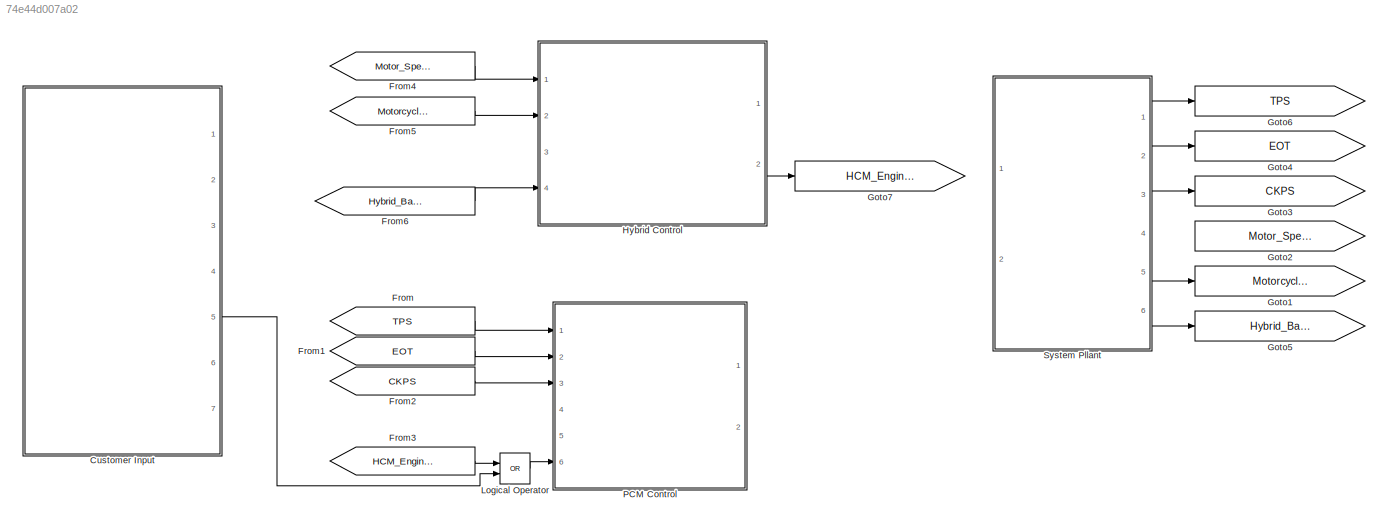
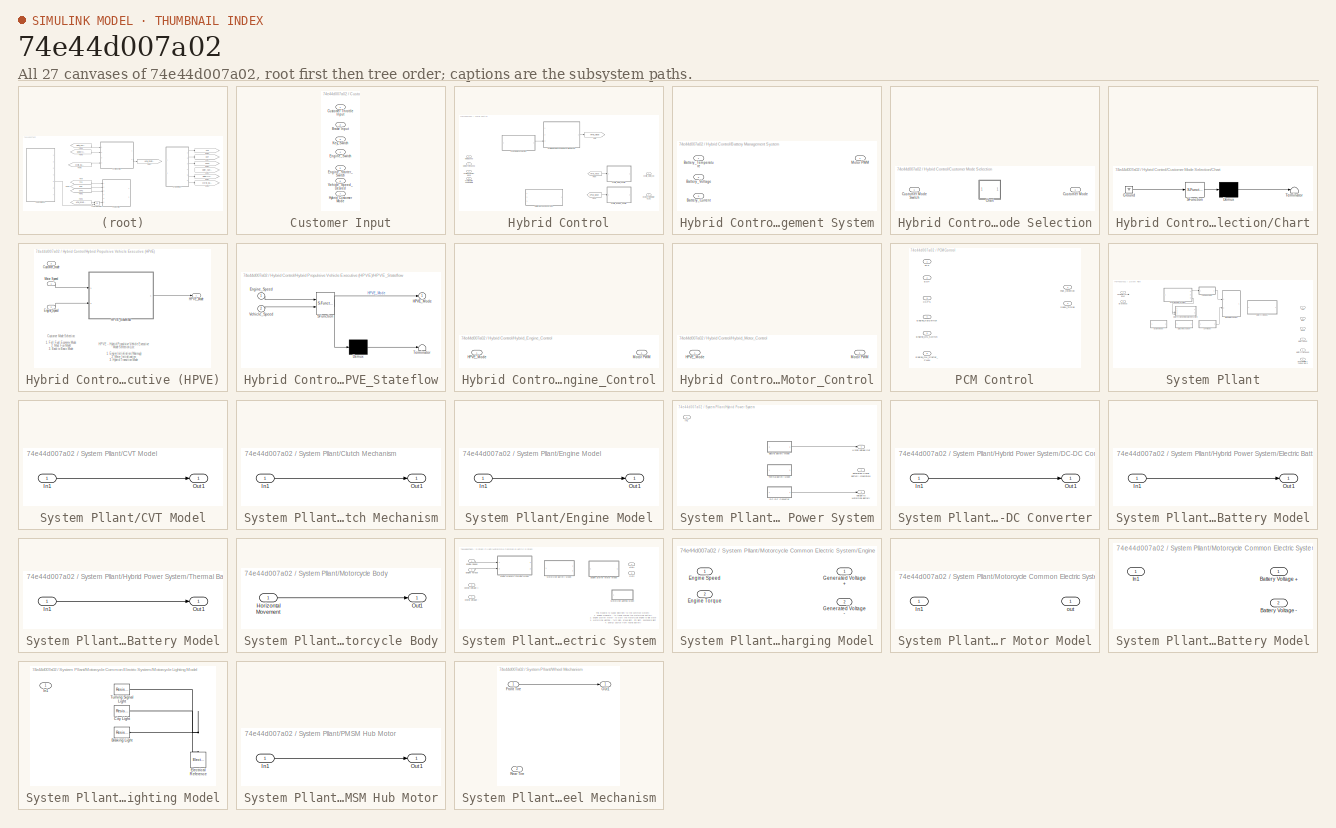
[diagram: thumbnail index - all 27 canvases of the model, root first then tree order]
MODEL slx_74e44d007a02
KIND model
BLOCK [SubSystem] Customer Input
  FunctionWithSeparateData = off
  MaskHideContents = off
  MinAlgLoopOccurrences = off
  Opaque = off
  Ports = [0, 7]
  PropExecContextOutsideSubsystem = off
  RTWSystemCode = Auto
  RequestExecContextInheritance = off
BLOCK [Outport] Customer Input/Brake Input
  IconDisplay = Port number
  Port = 2
BLOCK [Outport] Customer Input/Customer Throttle Input 
  IconDisplay = Port number
BLOCK [Outport] Customer Input/Engine_Starter_Switch
  IconDisplay = Port number
  Port = 5
BLOCK [Outport] Customer Input/Engine_Switch
  IconDisplay = Port number
  Port = 4
BLOCK [Outport] Customer Input/Hybrid Customer Mode
  IconDisplay = Port number
  Port = 7
BLOCK [Outport] Customer Input/Key_Switch
  IconDisplay = Port number
  Port = 3
BLOCK [Outport] Customer Input/Vehicle_Speed_Desired
  IconDisplay = Port number
  Port = 6
BLOCK [From] From
  GotoTag = TPS
BLOCK [From] From1
  GotoTag = EOT
BLOCK [From] From2
  GotoTag = CKPS
BLOCK [From] From3
  GotoTag = HCM_Engine_Motor_DC
BLOCK [From] From4
  GotoTag = Motor_Speed
BLOCK [From] From5
  GotoTag = Motorcycle_Speed
BLOCK [From] From6
  GotoTag = Hybrid_Battery_Temperature
BLOCK [Goto] Goto1
  GotoTag = Motorcycle_Speed
BLOCK [Goto] Goto2
  GotoTag = Motor_Speed
BLOCK [Goto] Goto3
  GotoTag = CKPS
BLOCK [Goto] Goto4
  GotoTag = EOT
BLOCK [Goto] Goto5
  GotoTag = Hybrid_Battery_Temperature
BLOCK [Goto] Goto6
  GotoTag = TPS
BLOCK [Goto] Goto7
  GotoTag = HCM_Engine_Motor_DC
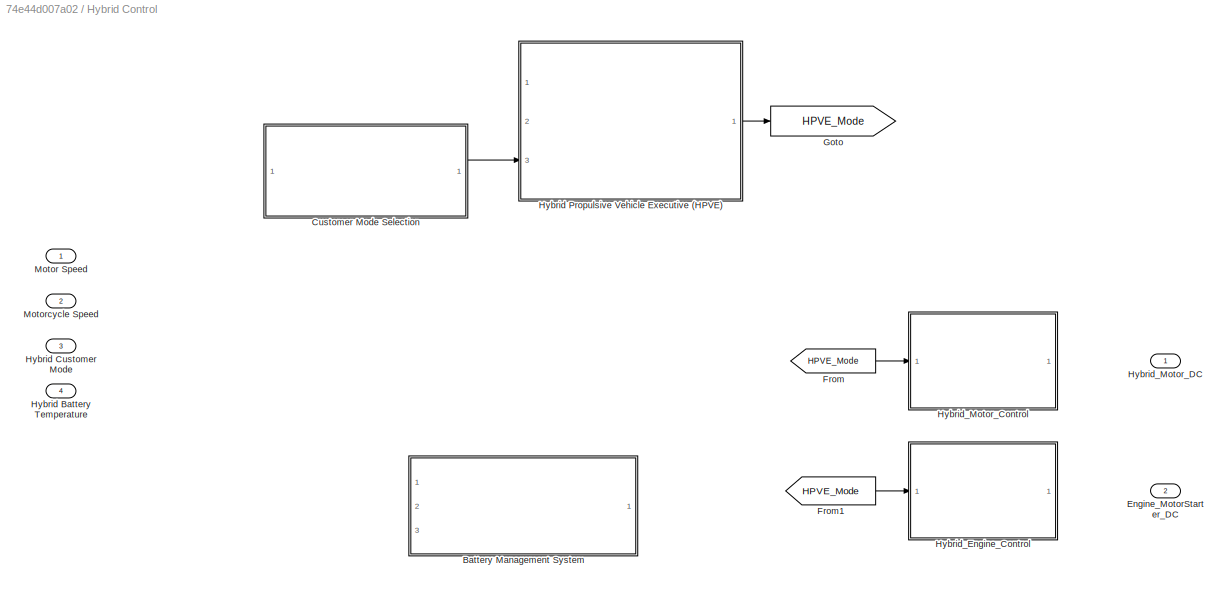
BLOCK [SubSystem] Hybrid Control
  FunctionWithSeparateData = off
  MaskHideContents = off
  MinAlgLoopOccurrences = off
  Opaque = off
  Ports = [4, 2]
  PropExecContextOutsideSubsystem = off
  RTWSystemCode = Auto
  RequestExecContextInheritance = off
BLOCK [SubSystem] Hybrid Control/Battery Management System
  FunctionWithSeparateData = off
  MaskHideContents = off
  MinAlgLoopOccurrences = off
  Opaque = off
  Ports = [3, 1]
  PropExecContextOutsideSubsystem = off
  RTWSystemCode = Auto
  RequestExecContextInheritance = off
BLOCK [Inport] Hybrid Control/Battery Management System/Battery_Current
  IconDisplay = Port number
  Port = 3
BLOCK [Inport] Hybrid Control/Battery Management System/Battery_Temperature
  IconDisplay = Port number
BLOCK [Inport] Hybrid Control/Battery Management System/Battery_Voltage
  IconDisplay = Port number
  Port = 2
BLOCK [Outport] Hybrid Control/Battery Management System/Motor PWM
  IconDisplay = Port number
BLOCK [SubSystem] Hybrid Control/Customer Mode Selection
  FunctionWithSeparateData = off
  MaskHideContents = off
  MinAlgLoopOccurrences = off
  Opaque = off
  Ports = [1, 1]
  PropExecContextOutsideSubsystem = off
  RTWSystemCode = Auto
  RequestExecContextInheritance = off
BLOCK [SubSystem] Hybrid Control/Customer Mode Selection/Chart
  ErrorFcn = Stateflow.Translate.translate
  FunctionWithSeparateData = off
  MaskHideContents = off
  MinAlgLoopOccurrences = off
  Opaque = off
  PermitHierarchicalResolution = ExplicitOnly
  Ports = []
  PropExecContextOutsideSubsystem = off
  RTWSystemCode = Auto
  RequestExecContextInheritance = off
  SFBlockType = Chart
  TreatAsAtomicUnit = on
BLOCK [Demux] Hybrid Control/Customer Mode Selection/Chart/ Demux 
  Outputs = 1
  Ports = [1, 1]
BLOCK [Ground] Hybrid Control/Customer Mode Selection/Chart/ Ground 
BLOCK [S-Function] Hybrid Control/Customer Mode Selection/Chart/ SFunction 
  EnableBusSupport = off
  FunctionName = sf_sfun
  PortCounts = [1 1]
  Ports = [1, 1]
  Tag = Stateflow S-Function HybridMotorcycle_HighLevelOverview 1
BLOCK [Terminator] Hybrid Control/Customer Mode Selection/Chart/ Terminator 
BLOCK [Outport] Hybrid Control/Customer Mode Selection/Customer Mode
  IconDisplay = Port number
BLOCK [Inport] Hybrid Control/Customer Mode Selection/Customer Mode Switch
  IconDisplay = Port number
BLOCK [Outport] Hybrid Control/Engine_MotorStarter_DC
  IconDisplay = Port number
  Port = 2
BLOCK [From] Hybrid Control/From
  GotoTag = HPVE_Mode
BLOCK [From] Hybrid Control/From1
  GotoTag = HPVE_Mode
BLOCK [Goto] Hybrid Control/Goto
  GotoTag = HPVE_Mode
BLOCK [Inport] Hybrid Control/Hybrid Battery Temperature
  IconDisplay = Port number
  Port = 4
BLOCK [Inport] Hybrid Control/Hybrid Customer Mode
  IconDisplay = Port number
  Port = 3
BLOCK [SubSystem] Hybrid Control/Hybrid Propulsive Vehicle Executive (HPVE)
  FunctionWithSeparateData = off
  MaskHideContents = off
  MinAlgLoopOccurrences = off
  Opaque = off
  Ports = [3, 1]
  PropExecContextOutsideSubsystem = off
  RTWSystemCode = Auto
  RequestExecContextInheritance = off
BLOCK [Inport] Hybrid Control/Hybrid Propulsive Vehicle Executive (HPVE)/Customer_mode 
  IconDisplay = Port number
  Port = 3
BLOCK [Inport] Hybrid Control/Hybrid Propulsive Vehicle Executive (HPVE)/Engine_Speed
  IconDisplay = Port number
  Port = 2
BLOCK [Outport] Hybrid Control/Hybrid Propulsive Vehicle Executive (HPVE)/HPVE_Mode
  IconDisplay = Port number
BLOCK [SubSystem] Hybrid Control/Hybrid Propulsive Vehicle Executive (HPVE)/HPVE_Stateflow
  ErrorFcn = Stateflow.Translate.translate
  FunctionWithSeparateData = off
  MaskHideContents = off
  MinAlgLoopOccurrences = off
  Opaque = off
  PermitHierarchicalResolution = ExplicitOnly
  Ports = [2, 1]
  PropExecContextOutsideSubsystem = off
  RTWSystemCode = Auto
  RequestExecContextInheritance = off
  SFBlockType = Chart
  TreatAsAtomicUnit = on
BLOCK [Demux] Hybrid Control/Hybrid Propulsive Vehicle Executive (HPVE)/HPVE_Stateflow/ Demux 
  Outputs = 1
  Ports = [1, 1]
BLOCK [S-Function] Hybrid Control/Hybrid Propulsive Vehicle Executive (HPVE)/HPVE_Stateflow/ SFunction 
  EnableBusSupport = off
  FunctionName = sf_sfun
  PortCounts = [2 2]
  Ports = [2, 2]
  Tag = Stateflow S-Function HybridMotorcycle_HighLevelOverview 2
BLOCK [Terminator] Hybrid Control/Hybrid Propulsive Vehicle Executive (HPVE)/HPVE_Stateflow/ Terminator 
BLOCK [Inport] Hybrid Control/Hybrid Propulsive Vehicle Executive (HPVE)/HPVE_Stateflow/Engine_Speed
  IconDisplay = Port number
BLOCK [Outport] Hybrid Control/Hybrid Propulsive Vehicle Executive (HPVE)/HPVE_Stateflow/HPVE_Mode
  IconDisplay = Port number
BLOCK [Inport] Hybrid Control/Hybrid Propulsive Vehicle Executive (HPVE)/HPVE_Stateflow/Vehicle_Speed
  IconDisplay = Port number
  Port = 2
BLOCK [Inport] Hybrid Control/Hybrid Propulsive Vehicle Executive (HPVE)/Motor Speed
  IconDisplay = Port number
BLOCK [SubSystem] Hybrid Control/Hybrid_Engine_Control
  FunctionWithSeparateData = off
  MaskHideContents = off
  MinAlgLoopOccurrences = off
  Opaque = off
  Ports = [1, 1]
  PropExecContextOutsideSubsystem = off
  RTWSystemCode = Auto
  RequestExecContextInheritance = off
BLOCK [Inport] Hybrid Control/Hybrid_Engine_Control/HPVE_Mode
  IconDisplay = Port number
BLOCK [Outport] Hybrid Control/Hybrid_Engine_Control/Motor PWM
  IconDisplay = Port number
BLOCK [SubSystem] Hybrid Control/Hybrid_Motor_Control
  FunctionWithSeparateData = off
  MaskHideContents = off
  MinAlgLoopOccurrences = off
  Opaque = off
  Ports = [1, 1]
  PropExecContextOutsideSubsystem = off
  RTWSystemCode = Auto
  RequestExecContextInheritance = off
BLOCK [Inport] Hybrid Control/Hybrid_Motor_Control/HPVE_Mode
  IconDisplay = Port number
BLOCK [Outport] Hybrid Control/Hybrid_Motor_Control/Motor PWM
  IconDisplay = Port number
BLOCK [Outport] Hybrid Control/Hybrid_Motor_DC
  IconDisplay = Port number
BLOCK [Inport] Hybrid Control/Motor Speed
  IconDisplay = Port number
BLOCK [Inport] Hybrid Control/Motorcycle Speed
  IconDisplay = Port number
  Port = 2
BLOCK [Logic] Logical Operator
  AllPortsSameDT = off
  Operator = OR
  OutDataTypeStr = boolean
  Ports = [2, 1]
BLOCK [SubSystem] PCM Control
  FunctionWithSeparateData = off
  MaskHideContents = off
  MinAlgLoopOccurrences = off
  Opaque = off
  Ports = [6, 2]
  PropExecContextOutsideSubsystem = off
  RTWSystemCode = Auto
  RequestExecContextInheritance = off
BLOCK [Inport] PCM Control/CKPS
  IconDisplay = Port number
  Port = 3
BLOCK [Inport] PCM Control/EOT
  IconDisplay = Port number
  Port = 2
BLOCK [Inport] PCM Control/Engine_KeySwitch
  IconDisplay = Port number
  Port = 4
BLOCK [Inport] PCM Control/Engine_ON_Starter_PWM
  IconDisplay = Port number
  Port = 6
BLOCK [Inport] PCM Control/Engine_ON_Switch
  IconDisplay = Port number
  Port = 5
BLOCK [Outport] PCM Control/Fuel_Injection
  IconDisplay = Port number
BLOCK [Outport] PCM Control/Spark_Timing
  IconDisplay = Port number
  Port = 2
BLOCK [Inport] PCM Control/TPS
  IconDisplay = Port number
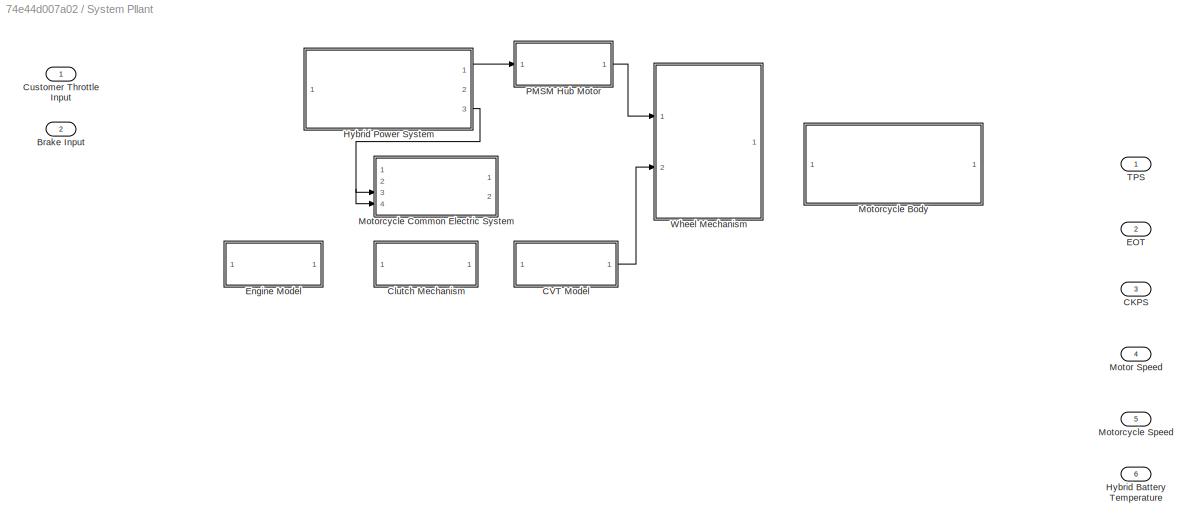
BLOCK [SubSystem] System Pllant
  FunctionWithSeparateData = off
  MaskHideContents = off
  MinAlgLoopOccurrences = off
  Opaque = off
  Ports = [2, 6]
  PropExecContextOutsideSubsystem = off
  RTWSystemCode = Auto
  RequestExecContextInheritance = off
BLOCK [Inport] System Pllant/Brake Input
  IconDisplay = Port number
  Port = 2
BLOCK [Outport] System Pllant/CKPS
  IconDisplay = Port number
  Port = 3
BLOCK [SubSystem] System Pllant/CVT Model
  FunctionWithSeparateData = off
  MaskHideContents = off
  MinAlgLoopOccurrences = off
  Opaque = off
  Ports = [1, 1]
  PropExecContextOutsideSubsystem = off
  RTWSystemCode = Auto
  RequestExecContextInheritance = off
BLOCK [Inport] System Pllant/CVT Model/In1
  IconDisplay = Port number
BLOCK [Outport] System Pllant/CVT Model/Out1
  IconDisplay = Port number
BLOCK [SubSystem] System Pllant/Clutch Mechanism
  FunctionWithSeparateData = off
  MaskHideContents = off
  MinAlgLoopOccurrences = off
  Opaque = off
  Ports = [1, 1]
  PropExecContextOutsideSubsystem = off
  RTWSystemCode = Auto
  RequestExecContextInheritance = off
BLOCK [Inport] System Pllant/Clutch Mechanism/In1
  IconDisplay = Port number
BLOCK [Outport] System Pllant/Clutch Mechanism/Out1
  IconDisplay = Port number
BLOCK [Inport] System Pllant/Customer Throttle Input
  IconDisplay = Port number
BLOCK [Outport] System Pllant/EOT
  IconDisplay = Port number
  Port = 2
BLOCK [SubSystem] System Pllant/Engine Model
  FunctionWithSeparateData = off
  MaskHideContents = off
  MinAlgLoopOccurrences = off
  Opaque = off
  Ports = [1, 1]
  PropExecContextOutsideSubsystem = off
  RTWSystemCode = Auto
  RequestExecContextInheritance = off
BLOCK [Inport] System Pllant/Engine Model/In1
  IconDisplay = Port number
BLOCK [Outport] System Pllant/Engine Model/Out1
  IconDisplay = Port number
BLOCK [Outport] System Pllant/Hybrid Battery Temperature
  IconDisplay = Port number
  Port = 6
BLOCK [SubSystem] System Pllant/Hybrid Power System
  FunctionWithSeparateData = off
  MaskHideContents = off
  MinAlgLoopOccurrences = off
  Opaque = off
  Ports = [1, 3]
  PropExecContextOutsideSubsystem = off
  RTWSystemCode = Auto
  RequestExecContextInheritance = off
BLOCK [SubSystem] System Pllant/Hybrid Power System/DC-DC Converter
  FunctionWithSeparateData = off
  MaskHideContents = off
  MinAlgLoopOccurrences = off
  Opaque = off
  Ports = [1, 1]
  PropExecContextOutsideSubsystem = off
  RTWSystemCode = Auto
  RequestExecContextInheritance = off
BLOCK [Inport] System Pllant/Hybrid Power System/DC-DC Converter/In1
  IconDisplay = Port number
BLOCK [Outport] System Pllant/Hybrid Power System/DC-DC Converter/Out1
  IconDisplay = Port number
BLOCK [SubSystem] System Pllant/Hybrid Power System/Electric Battery Model
  FunctionWithSeparateData = off
  MaskHideContents = off
  MinAlgLoopOccurrences = off
  Opaque = off
  Ports = [1, 1]
  PropExecContextOutsideSubsystem = off
  RTWSystemCode = Auto
  RequestExecContextInheritance = off
BLOCK [Inport] System Pllant/Hybrid Power System/Electric Battery Model/In1
  IconDisplay = Port number
BLOCK [Outport] System Pllant/Hybrid Power System/Electric Battery Model/Out1
  IconDisplay = Port number
BLOCK [Outport] System Pllant/Hybrid Power System/Estimated Hybrid Battery Temperature
  IconDisplay = Port number
  Port = 2
BLOCK [Outport] System Pllant/Hybrid Power System/Hybrid Voltage Out
  IconDisplay = Port number
BLOCK [Inport] System Pllant/Hybrid Power System/In1
  IconDisplay = Port number
BLOCK [SubSystem] System Pllant/Hybrid Power System/Thermal Battery Model
  FunctionWithSeparateData = off
  MaskHideContents = off
  MinAlgLoopOccurrences = off
  Opaque = off
  Ports = [1, 1]
  PropExecContextOutsideSubsystem = off
  RTWSystemCode = Auto
  RequestExecContextInheritance = off
BLOCK [Inport] System Pllant/Hybrid Power System/Thermal Battery Model/In1
  IconDisplay = Port number
BLOCK [Outport] System Pllant/Hybrid Power System/Thermal Battery Model/Out1
  IconDisplay = Port number
BLOCK [Outport] System Pllant/Hybrid Power System/Voltage to Motorcycle Battery
  IconDisplay = Port number
  Port = 3
BLOCK [Outport] System Pllant/Motor Speed
  IconDisplay = Port number
  Port = 4
BLOCK [SubSystem] System Pllant/Motorcycle Body
  FunctionWithSeparateData = off
  MaskHideContents = off
  MinAlgLoopOccurrences = off
  Opaque = off
  Ports = [1, 1]
  PropExecContextOutsideSubsystem = off
  RTWSystemCode = Auto
  RequestExecContextInheritance = off
BLOCK [Inport] System Pllant/Motorcycle Body/Horizontal Movement
  IconDisplay = Port number
BLOCK [Outport] System Pllant/Motorcycle Body/Out1
  IconDisplay = Port number
BLOCK [SubSystem] System Pllant/Motorcycle Common Electric System
  FunctionWithSeparateData = off
  MaskHideContents = off
  MinAlgLoopOccurrences = off
  Opaque = off
  Ports = [4, 2]
  PropExecContextOutsideSubsystem = off
  RTWSystemCode = Auto
  RequestExecContextInheritance = off
BLOCK [SubSystem] System Pllant/Motorcycle Common Electric System/Engine Magneto Charging Model
  FunctionWithSeparateData = off
  MaskHideContents = off
  MinAlgLoopOccurrences = off
  Opaque = off
  Ports = [2, 2]
  PropExecContextOutsideSubsystem = off
  RTWSystemCode = Auto
  RequestExecContextInheritance = off
BLOCK [Inport] System Pllant/Motorcycle Common Electric System/Engine Magneto Charging Model/Engine Speed
  IconDisplay = Port number
BLOCK [Inport] System Pllant/Motorcycle Common Electric System/Engine Magneto Charging Model/Engine Torque
  IconDisplay = Port number
  Port = 2
BLOCK [Outport] System Pllant/Motorcycle Common Electric System/Engine Magneto Charging Model/Generated  Voltage -
  IconDisplay = Port number
  Port = 2
BLOCK [Outport] System Pllant/Motorcycle Common Electric System/Engine Magneto Charging Model/Generated Voltage +
  IconDisplay = Port number
BLOCK [Inport] System Pllant/Motorcycle Common Electric System/Engine Speed
  IconDisplay = Port number
BLOCK [SubSystem] System Pllant/Motorcycle Common Electric System/Engine Starter Motor Model
  FunctionWithSeparateData = off
  MaskHideContents = off
  MinAlgLoopOccurrences = off
  Opaque = off
  Ports = [1, 1]
  PropExecContextOutsideSubsystem = off
  RTWSystemCode = Auto
  RequestExecContextInheritance = off
BLOCK [Inport] System Pllant/Motorcycle Common Electric System/Engine Starter Motor Model/In1
  IconDisplay = Port number
BLOCK [Outport] System Pllant/Motorcycle Common Electric System/Engine Starter Motor Model/out
  IconDisplay = Port number
BLOCK [Inport] System Pllant/Motorcycle Common Electric System/Engine Torque
  IconDisplay = Port number
  Port = 2
BLOCK [Inport] System Pllant/Motorcycle Common Electric System/Hybrid Voltage +
  IconDisplay = Port number
  Port = 3
BLOCK [Inport] System Pllant/Motorcycle Common Electric System/Hybrid Voltage -
  IconDisplay = Port number
  Port = 4
BLOCK [SubSystem] System Pllant/Motorcycle Common Electric System/Motorcycle Battery Model
  FunctionWithSeparateData = off
  MaskHideContents = off
  MinAlgLoopOccurrences = off
  Opaque = off
  Ports = [1, 2]
  PropExecContextOutsideSubsystem = off
  RTWSystemCode = Auto
  RequestExecContextInheritance = off
BLOCK [Outport] System Pllant/Motorcycle Common Electric System/Motorcycle Battery Model/Battery Voltage +
  IconDisplay = Port number
BLOCK [Outport] System Pllant/Motorcycle Common Electric System/Motorcycle Battery Model/Battery Voltage -
  IconDisplay = Port number
  Port = 2
BLOCK [Inport] System Pllant/Motorcycle Common Electric System/Motorcycle Battery Model/In1
  IconDisplay = Port number
BLOCK [SubSystem] System Pllant/Motorcycle Common Electric System/Motorcycle Lighting Model
  FunctionWithSeparateData = off
  MaskHideContents = off
  MinAlgLoopOccurrences = off
  Opaque = off
  Ports = [1]
  PropExecContextOutsideSubsystem = off
  RTWSystemCode = Auto
  RequestExecContextInheritance = off
BLOCK [Reference] System Pllant/Motorcycle Common Electric System/Motorcycle Lighting Model/Braking Light  REF=fl_lib/Electrical/Electrical Elements/Resistor
  ClassName = resistor
  ComponentPath = foundation.electrical.elements.resistor
  ComponentVariantNames = resistor
  ComponentVariants = foundation.electrical.elements.resistor
  LocalVarDescs = |i|v
  LocalVarLogging = [0 0]
  LocalVarNames = |i|v
  Ports = [0, 0, 0, 0, 0, 1, 1]
  R = 1
  R_unit = Ohm
  SchemaVersion = 1
  SourceBlock = fl_lib/Electrical/Electrical Elements/Resistor
  SourceFile = foundation.electrical.elements.resistor
  SourceType = Resistor
  i_Log = off
  v_Log = off
BLOCK [Reference] System Pllant/Motorcycle Common Electric System/Motorcycle Lighting Model/City Light  REF=fl_lib/Electrical/Electrical Elements/Resistor
  ClassName = resistor
  ComponentPath = foundation.electrical.elements.resistor
  ComponentVariantNames = resistor
  ComponentVariants = foundation.electrical.elements.resistor
  LocalVarDescs = |i|v
  LocalVarLogging = [0 0]
  LocalVarNames = |i|v
  Ports = [0, 0, 0, 0, 0, 1, 1]
  R = 1
  R_unit = Ohm
  SchemaVersion = 1
  SourceBlock = fl_lib/Electrical/Electrical Elements/Resistor
  SourceFile = foundation.electrical.elements.resistor
  SourceType = Resistor
  i_Log = off
  v_Log = off
BLOCK [Reference] System Pllant/Motorcycle Common Electric System/Motorcycle Lighting Model/Electrical Reference  REF=fl_lib/Electrical/Electrical Elements/Electrical Reference
  ClassName = reference
  ComponentPath = foundation.electrical.elements.reference
  ComponentVariantNames = reference
  ComponentVariants = foundation.electrical.elements.reference
  LocalVarDescs = |i
  LocalVarLogging = 0
  LocalVarNames = |i
  Ports = [0, 0, 0, 0, 0, 1]
  SchemaVersion = 1
  SourceBlock = fl_lib/Electrical/Electrical Elements/Electrical Reference
  SourceFile = foundation.electrical.elements.reference
  SourceType = Electrical Reference
  i_Log = off
BLOCK [Inport] System Pllant/Motorcycle Common Electric System/Motorcycle Lighting Model/In1
  IconDisplay = Port number
BLOCK [Reference] System Pllant/Motorcycle Common Electric System/Motorcycle Lighting Model/Turning Signal Light  REF=fl_lib/Electrical/Electrical Elements/Resistor
  ClassName = resistor
  ComponentPath = foundation.electrical.elements.resistor
  ComponentVariantNames = resistor
  ComponentVariants = foundation.electrical.elements.resistor
  LocalVarDescs = |i|v
  LocalVarLogging = [0 0]
  LocalVarNames = |i|v
  Ports = [0, 0, 0, 0, 0, 1, 1]
  R = 1
  R_unit = Ohm
  SchemaVersion = 1
  SourceBlock = fl_lib/Electrical/Electrical Elements/Resistor
  SourceFile = foundation.electrical.elements.resistor
  SourceType = Resistor
  i_Log = off
  v_Log = off
BLOCK [Outport] System Pllant/Motorcycle Common Electric System/Out1
  IconDisplay = Port number
BLOCK [Outport] System Pllant/Motorcycle Common Electric System/Out2
  IconDisplay = Port number
  Port = 2
BLOCK [Outport] System Pllant/Motorcycle Speed
  IconDisplay = Port number
  Port = 5
BLOCK [SubSystem] System Pllant/PMSM Hub Motor
  FunctionWithSeparateData = off
  MaskHideContents = off
  MinAlgLoopOccurrences = off
  Opaque = off
  Ports = [1, 1]
  PropExecContextOutsideSubsystem = off
  RTWSystemCode = Auto
  RequestExecContextInheritance = off
BLOCK [Inport] System Pllant/PMSM Hub Motor/In1
  IconDisplay = Port number
BLOCK [Outport] System Pllant/PMSM Hub Motor/Out1
  IconDisplay = Port number
BLOCK [Outport] System Pllant/TPS
  IconDisplay = Port number
BLOCK [SubSystem] System Pllant/Wheel Mechanism
  FunctionWithSeparateData = off
  MaskHideContents = off
  MinAlgLoopOccurrences = off
  Opaque = off
  Ports = [2, 1]
  PropExecContextOutsideSubsystem = off
  RTWSystemCode = Auto
  RequestExecContextInheritance = off
BLOCK [Inport] System Pllant/Wheel Mechanism/Front Tire
  IconDisplay = Port number
BLOCK [Outport] System Pllant/Wheel Mechanism/Out1
  IconDisplay = Port number
BLOCK [Inport] System Pllant/Wheel Mechanism/Rear Tire
  IconDisplay = Port number
  Port = 2
ANNOTATION Hybrid Control/Hybrid Propulsive Vehicle Executive (HPVE): Customer Mode Selection: 1. Full Fuel Economy Mode 2. Most Fun Mode! 3. Back to Basic Mode
ANNOTATION Hybrid Control/Hybrid Propulsive Vehicle Executive (HPVE): HPVE - Hybrid Propulsive Vehicle Executive Mode Selection List: 1. Engine Initialiation (Warmup) 2. Motor Initialization 3. Hybrid Transition Mode 4. Motor Only Mode 5. Engine Only Mode 6. Motor Engine Combined Mode
ANNOTATION System Pllant/Motorcycle Common Electric System: This model is to supply electricity to the common system: 1. Engine Magneto - to trickle charge the motorcycle battery 2. Engine Starter Motor- to start the motorcycle engine to idle state 3. Motorcycle Lighting - turn sign, brake light, city light, dashboard light 4. Energy Source from Hybrid Battery
LINE Customer Input:5 -> Logical Operator:2
LINE From1:1 -> PCM Control:2
LINE From2:1 -> PCM Control:3
LINE From3:1 -> Logical Operator:1
LINE From4:1 -> Hybrid Control:1
LINE From5:1 -> Hybrid Control:2
LINE From6:1 -> Hybrid Control:4
LINE From:1 -> PCM Control:1
LINE Hybrid Control/Customer Mode Selection:1 -> Hybrid Control/Hybrid Propulsive Vehicle Executive (HPVE):3
LINE Hybrid Control/From1:1 -> Hybrid Control/Hybrid_Engine_Control:1
LINE Hybrid Control/From:1 -> Hybrid Control/Hybrid_Motor_Control:1
LINE Hybrid Control/Hybrid Propulsive Vehicle Executive (HPVE)/Engine_Speed:1 -> Hybrid Control/Hybrid Propulsive Vehicle Executive (HPVE)/HPVE_Stateflow:2
LINE Hybrid Control/Hybrid Propulsive Vehicle Executive (HPVE)/HPVE_Stateflow:1 -> Hybrid Control/Hybrid Propulsive Vehicle Executive (HPVE)/HPVE_Mode:1
LINE Hybrid Control/Hybrid Propulsive Vehicle Executive (HPVE)/Motor Speed:1 -> Hybrid Control/Hybrid Propulsive Vehicle Executive (HPVE)/HPVE_Stateflow:1
LINE Hybrid Control/Hybrid Propulsive Vehicle Executive (HPVE):1 -> Hybrid Control/Goto:1
LINE Hybrid Control:2 -> Goto7:1
LINE Logical Operator:1 -> PCM Control:6
LINE System Pllant/CVT Model/In1:1 -> System Pllant/CVT Model/Out1:1
LINE System Pllant/CVT Model:1 -> System Pllant/Wheel Mechanism:2
LINE System Pllant/Clutch Mechanism/In1:1 -> System Pllant/Clutch Mechanism/Out1:1
LINE System Pllant/Engine Model/In1:1 -> System Pllant/Engine Model/Out1:1
LINE System Pllant/Hybrid Power System/DC-DC Converter/In1:1 -> System Pllant/Hybrid Power System/DC-DC Converter/Out1:1
LINE System Pllant/Hybrid Power System/DC-DC Converter:1 -> System Pllant/Hybrid Power System/Voltage to Motorcycle Battery:1
LINE System Pllant/Hybrid Power System/Electric Battery Model/In1:1 -> System Pllant/Hybrid Power System/Electric Battery Model/Out1:1
LINE System Pllant/Hybrid Power System/Electric Battery Model:1 -> System Pllant/Hybrid Power System/Hybrid Voltage Out:1
LINE System Pllant/Hybrid Power System/Thermal Battery Model/In1:1 -> System Pllant/Hybrid Power System/Thermal Battery Model/Out1:1
LINE System Pllant/Hybrid Power System:1 -> System Pllant/PMSM Hub Motor:1
NET System Pllant/Hybrid Power System:3 -> System Pllant/Motorcycle Common Electric System:3, System Pllant/Motorcycle Common Electric System:4
LINE System Pllant/Motorcycle Body/Horizontal Movement:1 -> System Pllant/Motorcycle Body/Out1:1
LINE System Pllant/Motorcycle Common Electric System/Engine Speed:1 -> System Pllant/Motorcycle Common Electric System/Engine Magneto Charging Model:1
LINE System Pllant/Motorcycle Common Electric System/Engine Torque:1 -> System Pllant/Motorcycle Common Electric System/Engine Magneto Charging Model:2
LINE System Pllant/PMSM Hub Motor/In1:1 -> System Pllant/PMSM Hub Motor/Out1:1
LINE System Pllant/PMSM Hub Motor:1 -> System Pllant/Wheel Mechanism:1
LINE System Pllant/Wheel Mechanism/Front Tire:1 -> System Pllant/Wheel Mechanism/Out1:1
LINE System Pllant:1 -> Goto6:1
LINE System Pllant:2 -> Goto4:1
LINE System Pllant:3 -> Goto3:1
LINE System Pllant:5 -> Goto1:1
LINE System Pllant:6 -> Goto5:1
PNET net1: System Pllant/Motorcycle Common Electric System/Motorcycle Lighting Model/Braking Light:RConn1 -- System Pllant/Motorcycle Common Electric System/Motorcycle Lighting Model/City Light:RConn1 -- System Pllant/Motorcycle Common Electric System/Motorcycle Lighting Model/Electrical Reference:LConn1 -- System Pllant/Motorcycle Common Electric System/Motorcycle Lighting Model/Turning Signal Light:RConn1
note: NET lines group one-source signal fan-out (src -> all destinations, sorted); 1:1 wires keep LINE; PNET lines group multi-terminal physical nets as a canonical sorted terminal list (undirected conserving connections); 2-terminal nets keep the pairwise PLINE form
